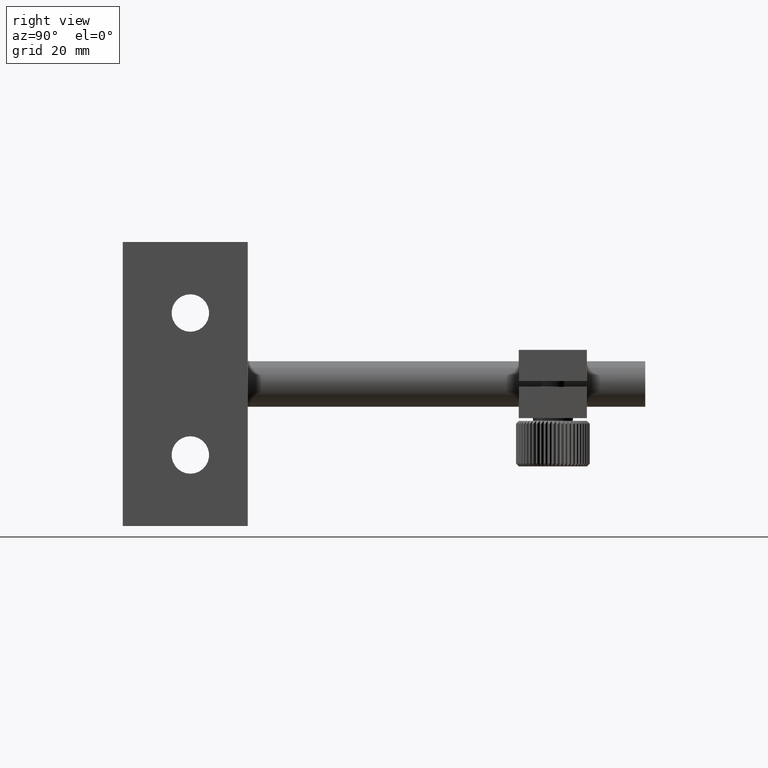
[diagram: clean part render]
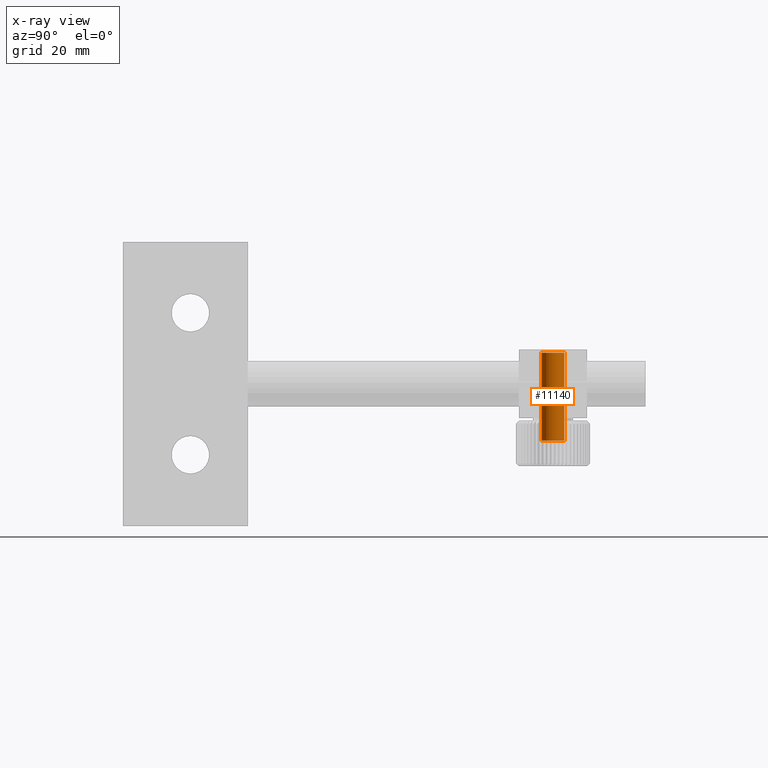
[diagram: x-ray — body ghosted, one internal face saturated and labeled with its STEP entity id]
A machine part, right view, then the same camera in x-ray: the body is ghosted and one INTERNAL B-rep face — a face not visible from any outside direction — is saturated and labeled: STEP entity #11140.
In plain terms, the highlighted cylindrical surface (edge-blend (fillet) strip) has radius 2 mm, axis along (0, -0, 1).
Its self-contained STEP definition (entity closure, byte-faithful):
#110 = EDGE_CURVE ( 'NONE', #1586, #12052, #10401, .T. ) ;
#489 = VERTEX_POINT ( 'NONE', #12688 ) ;
#823 = VERTEX_POINT ( 'NONE', #4594 ) ;
#969 = DIRECTION ( 'NONE',  ( -1.342743945298316900E-016, 1.127084276818846300E-031, -1.000000000000000000 ) ) ;
#1154 = CARTESIAN_POINT ( 'NONE',  ( 25.28603302097279100, 69.14249319889783900, 5.500000000000005300 ) ) ;
#1157 = EDGE_CURVE ( 'NONE', #823, #12052, #8914, .T. ) ;
#1586 = VERTEX_POINT ( 'NONE', #1615 ) ;
#1615 = CARTESIAN_POINT ( 'NONE',  ( 25.28603302097275600, 71.14249319889783900, -9.999999999999994700 ) ) ;
#3441 = AXIS2_PLACEMENT_3D ( 'NONE', #12461, #7187, #8091 ) ;
#4573 = ORIENTED_EDGE ( 'NONE', *, *, #13319, .T. ) ;
#4594 = CARTESIAN_POINT ( 'NONE',  ( 25.28603302097275600, 67.14249319889783900, 5.500000000000005300 ) ) ;
#4695 = DIRECTION ( 'NONE',  ( 1.342743945298316900E-016, -1.127084276818846300E-031, 1.000000000000000000 ) ) ;
#5714 = CARTESIAN_POINT ( 'NONE',  ( 25.28603302097275600, 71.14249319889783900, 5.500000000000005300 ) ) ;
#5761 = FACE_OUTER_BOUND ( 'NONE', #5938, .T. ) ;
#5916 = ORIENTED_EDGE ( 'NONE', *, *, #1157, .T. ) ;
#5938 = EDGE_LOOP ( 'NONE', ( #11298, #4573, #5916, #9248 ) ) ;
#5997 = CARTESIAN_POINT ( 'NONE',  ( 25.28603302097275900, 69.14249319889783900, 28.69130434782608000 ) ) ;
#6047 = VECTOR ( 'NONE', #9827, 1000.000000000000000 ) ;
#6634 = CARTESIAN_POINT ( 'NONE',  ( 25.28603302097275900, 67.14249319889783900, 28.69130434782608000 ) ) ;
#6753 = LINE ( 'NONE', #6634, #6047 ) ;
#7057 = DIRECTION ( 'NONE',  ( 0.0000000000000000000, 1.000000000000000000, 0.0000000000000000000 ) ) ;
#7187 = DIRECTION ( 'NONE',  ( 1.342743945298316900E-016, -1.127084276818846300E-031, 1.000000000000000000 ) ) ;
#8091 = DIRECTION ( 'NONE',  ( 0.0000000000000000000, 1.000000000000000000, 0.0000000000000000000 ) ) ;
#8141 = AXIS2_PLACEMENT_3D ( 'NONE', #5997, #11314, #7057 ) ;
#8457 = DIRECTION ( 'NONE',  ( 0.0000000000000000000, -1.000000000000000000, 0.0000000000000000000 ) ) ;
#8914 = CIRCLE ( 'NONE', #13494, 2.000000000000001800 ) ;
#9248 = ORIENTED_EDGE ( 'NONE', *, *, #110, .F. ) ;
#9492 = EDGE_CURVE ( 'NONE', #1586, #489, #10150, .T. ) ;
#9827 = DIRECTION ( 'NONE',  ( 1.342743945298316900E-016, -1.127084276818846300E-031, 1.000000000000000000 ) ) ;
#10150 = CIRCLE ( 'NONE', #3441, 2.000000000000001800 ) ;
#10401 = LINE ( 'NONE', #10976, #13085 ) ;
#10976 = CARTESIAN_POINT ( 'NONE',  ( 25.28603302097275900, 71.14249319889783900, 28.69130434782608000 ) ) ;
#11140 = ADVANCED_FACE ( 'NONE', ( #5761 ), #12977, .T. ) ;
#11298 = ORIENTED_EDGE ( 'NONE', *, *, #9492, .T. ) ;
#11314 = DIRECTION ( 'NONE',  ( 1.342743945298316900E-016, -1.127084276818846300E-031, 1.000000000000000000 ) ) ;
#12052 = VERTEX_POINT ( 'NONE', #5714 ) ;
#12461 = CARTESIAN_POINT ( 'NONE',  ( 25.28603302097275600, 69.14249319889783900, -9.999999999999994700 ) ) ;
#12688 = CARTESIAN_POINT ( 'NONE',  ( 25.28603302097275600, 67.14249319889783900, -9.999999999999994700 ) ) ;
#12977 = CYLINDRICAL_SURFACE ( 'NONE', #8141, 2.000000000000001800 ) ;
#13085 = VECTOR ( 'NONE', #4695, 1000.000000000000000 ) ;
#13319 = EDGE_CURVE ( 'NONE', #489, #823, #6753, .T. ) ;
#13494 = AXIS2_PLACEMENT_3D ( 'NONE', #1154, #969, #8457 ) ;